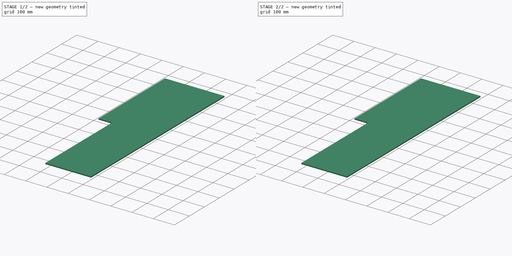
[diagram: build sequence overview — one tinted view per stage of 2, left to right]
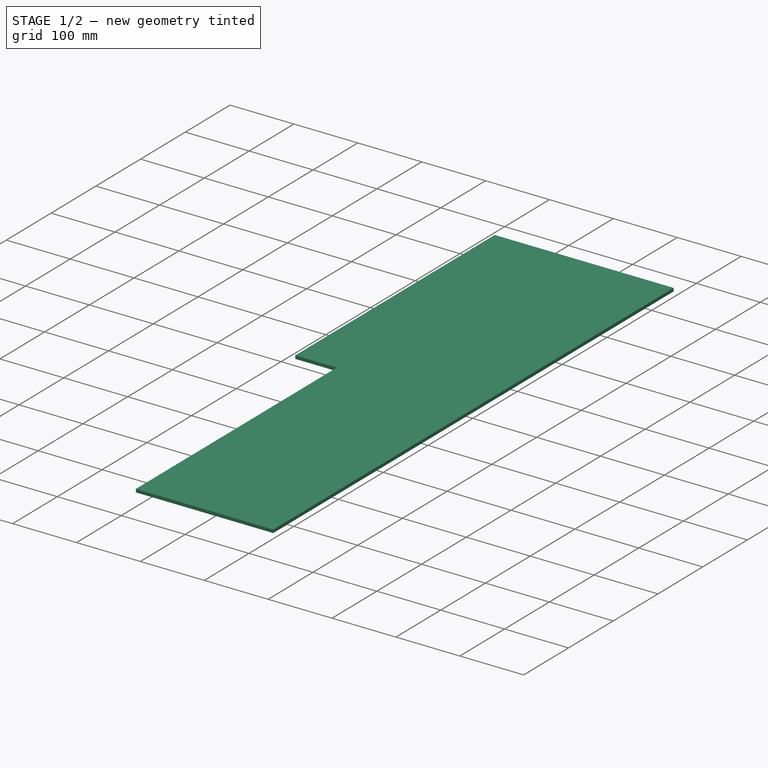
[diagram: stage 1 of 2 — iso view after this stage's code; geometry added in this stage tinted green]
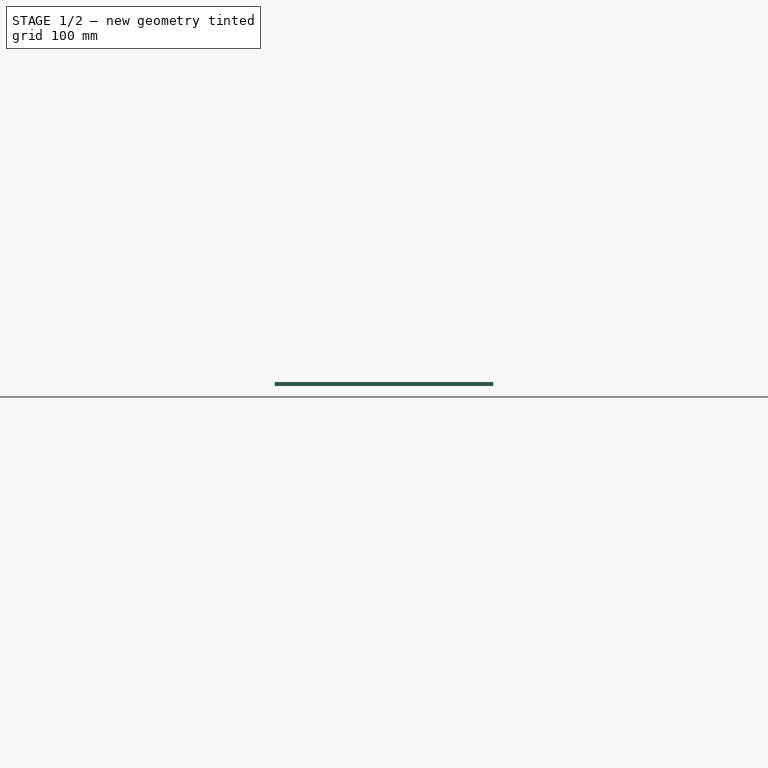
[diagram: stage 1 of 2 — front view after this stage's code; geometry added in this stage tinted green]
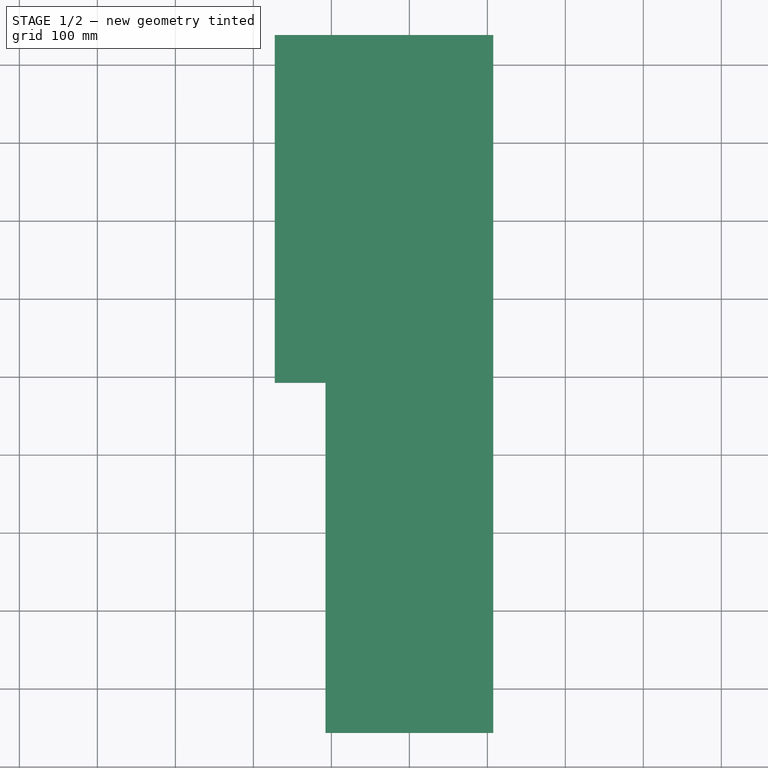
[diagram: stage 1 of 2 — top view after this stage's code; geometry added in this stage tinted green]
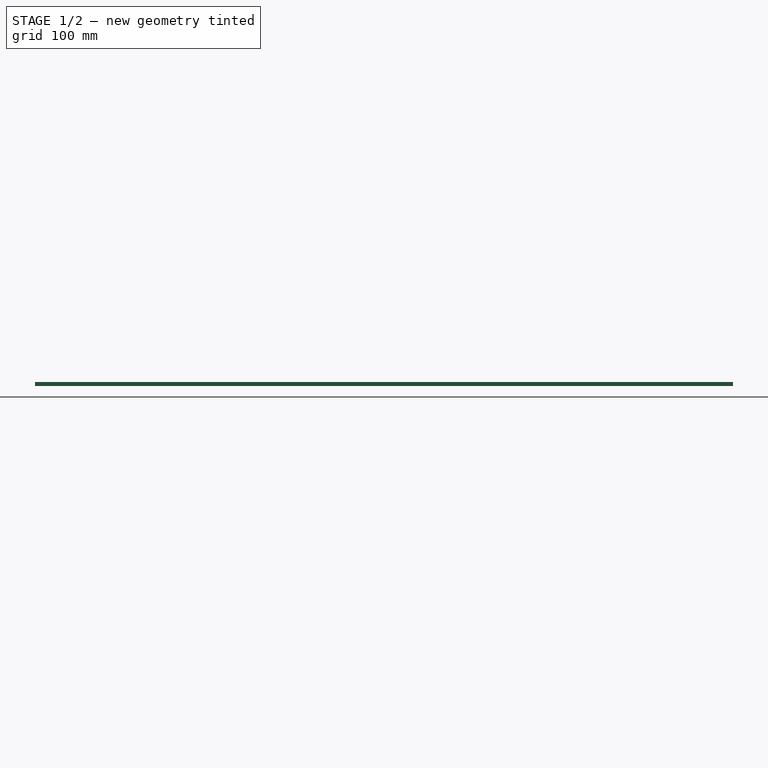
[diagram: stage 1 of 2 — right view after this stage's code; geometry added in this stage tinted green]
FCSTD DOCUMENT  (FreeCAD 0.16R6698 (Git))
Label: Bottom_Plate
License: All rights reserved
LicenseURL: http://en.wikipedia.org/wiki/All_rights_reserved
objects: Sketcher::SketchObject×2, PartDesign::Pad×1, PartDesign::Pocket×1
note: 6 computed .brp shape members not serialized (recipe doc carries the construction recipe); baked Part::Feature solids carry a one-line shape summary decoded from their .brp

FEATURE [Sketcher::SketchObject] Sketch
  sketch-geometry (7):
    g0: LineSegment StartX=-107.5 StartY=438.5 StartZ=0 EndX=107.5 EndY=438.5 EndZ=0
    g1: LineSegment StartX=107.5 StartY=-456.5 StartZ=0 EndX=-107.5 EndY=-456.5 EndZ=0
    g2: LineSegment StartX=-107.5 StartY=-456.5 StartZ=0 EndX=-107.5 EndY=-7.5 EndZ=0
    g3: LineSegment StartX=-107.5 StartY=438.5 StartZ=0 EndX=-172.5 EndY=438.5 EndZ=0
    g4: LineSegment StartX=-172.5 StartY=438.5 StartZ=0 EndX=-172.5 EndY=-7.5 EndZ=0
    g5: LineSegment StartX=-172.5 StartY=-7.5 StartZ=0 EndX=-107.5 EndY=-7.5 EndZ=0
    g6: LineSegment StartX=107.5 StartY=-456.5 StartZ=0 EndX=107.5 EndY=438.5 EndZ=0
  constraints (20):
    c: Coincident(g1,g2)
    c: Horizontal(g0)
    c: Horizontal(g1)
    c: Vertical(g2)
    c: DistanceY(g1,g0) = 895
    c: DistanceX(g0,g0) = 215
    c: DistanceY(g-1,g0) = 438.5
    c: DistanceX(g1,g-1) = 107.5
    c: Coincident(g3,g4)
    c: Coincident(g4,g5)
    c: Horizontal(g3)
    c: Horizontal(g5)
    c: Vertical(g4)
    c: Coincident(g3,g0)
    c: DistanceX(g5,g5) = 65
    c: DistanceY(g4,g4) = 446
    c: Coincident(g6,g1)
    c: Coincident(g6,g0)
    c: Vertical(g6)
    c: PointOnObject(g2,g5)
FEATURE [PartDesign::Pad] Pad
  Length = 5
  Length2 = 100
  Sketch = -> Sketch
  Type = 0
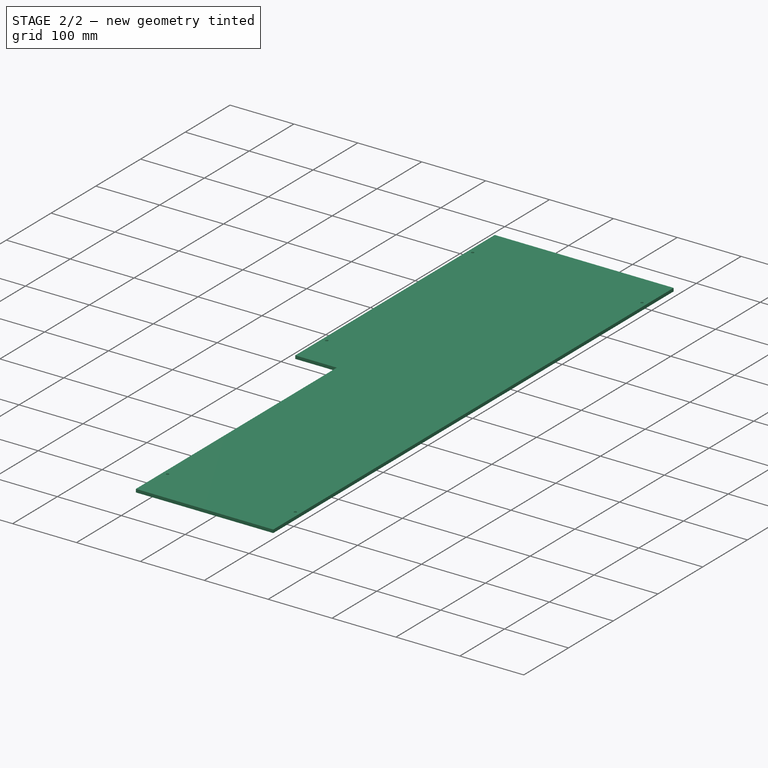
[diagram: stage 2 of 2 — iso view after this stage's code; geometry added in this stage tinted green]
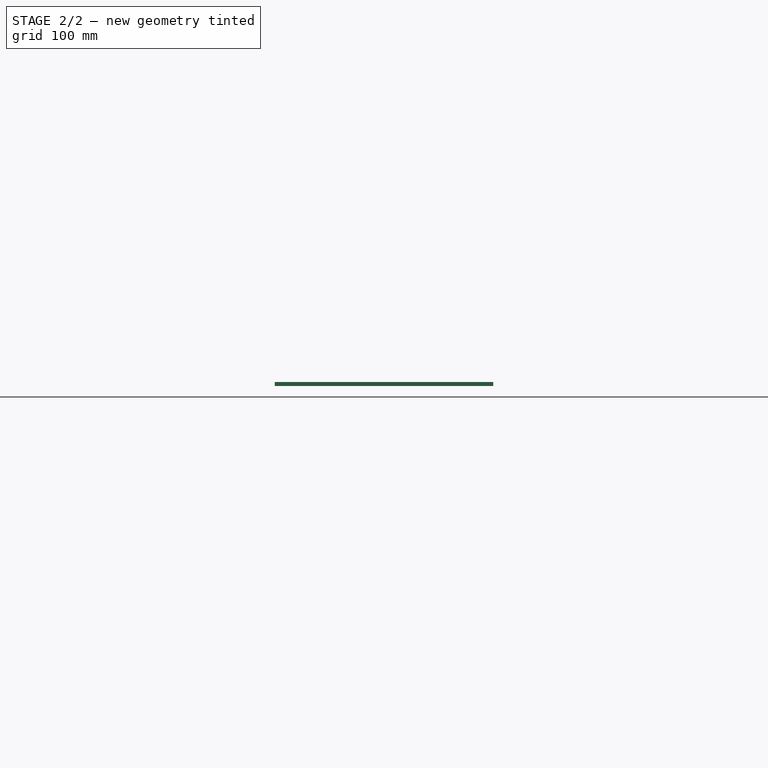
[diagram: stage 2 of 2 — front view after this stage's code; geometry added in this stage tinted green]
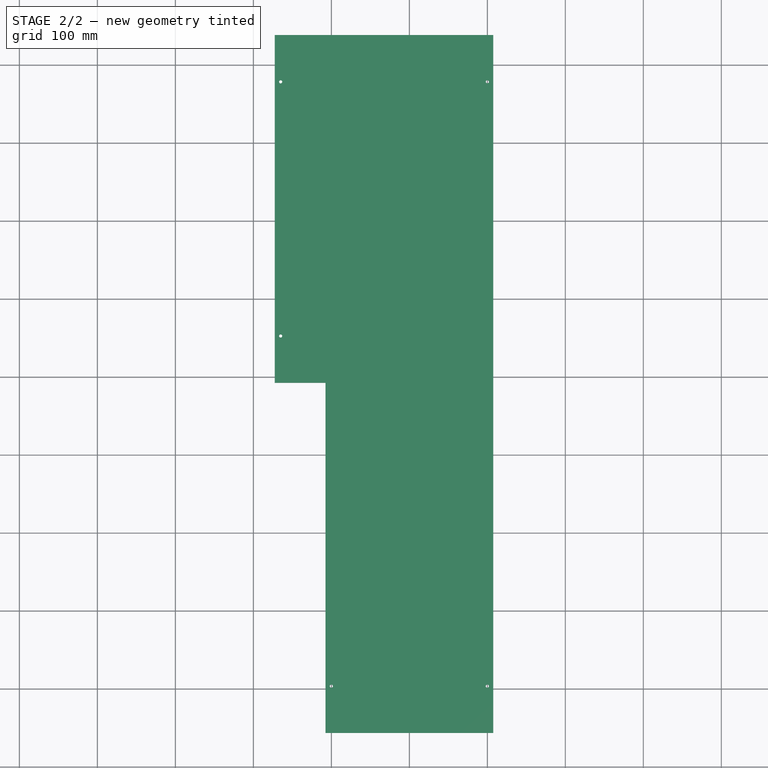
[diagram: stage 2 of 2 — top view after this stage's code; geometry added in this stage tinted green]
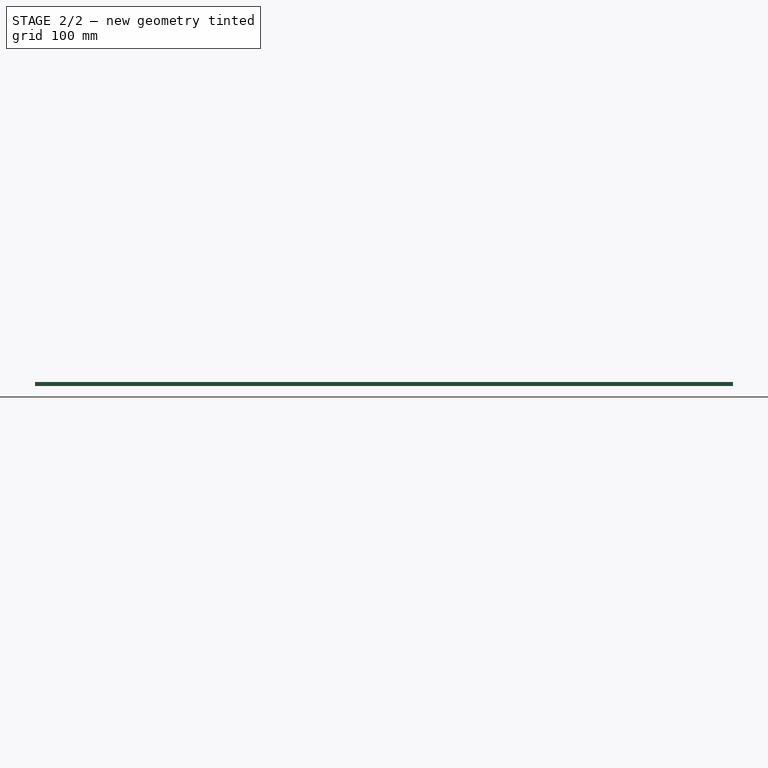
[diagram: stage 2 of 2 — right view after this stage's code; geometry added in this stage tinted green]
FEATURE [Sketcher::SketchObject] Sketch001
  ExternalGeometry = -> [Pad]
  Placement = pos=(0,0,5) rot=(0,0,1;0rad)
  Support = -> Pad [Face9]
  sketch-geometry (5):
    g0: Circle CenterX=-165 CenterY=378.5 CenterZ=0 NormalX=0 NormalY=0 NormalZ=1 Radius=2
    g1: Circle CenterX=-165 CenterY=52.5 CenterZ=0 NormalX=0 NormalY=0 NormalZ=1 Radius=2
    g2: Circle CenterX=-100 CenterY=-396.5 CenterZ=0 NormalX=0 NormalY=0 NormalZ=1 Radius=2
    g3: Circle CenterX=100 CenterY=-396.5 CenterZ=0 NormalX=0 NormalY=0 NormalZ=1 Radius=2
    g4: Circle CenterX=100 CenterY=378.5 CenterZ=0 NormalX=0 NormalY=0 NormalZ=1 Radius=2
  constraints (15):
    c: Radius(g2) = 2
    c: Equal(g2,g3)
    c: Equal(g2,g1)
    c: Equal(g2,g0)
    c: Equal(g2,g4)
    c: DistanceY(g4,g0) = 0
    c: DistanceX(g1,g0) = 0
    c: DistanceY(g2,g3) = 0
    c: DistanceX(g4,g3) = 0
    c: DistanceY(g-4,g1) = 60
    c: DistanceX(g4,g-6) = 7.5
    c: DistanceY(g4,g-6) = 60
    c: DistanceX(g-4,g1) = 7.5
    c: DistanceX(g-5,g2) = 7.5
    c: DistanceY(g-5,g2) = 60
FEATURE [PartDesign::Pocket] Pocket
  Length = 5
  Sketch = -> Sketch001
  Type = 0
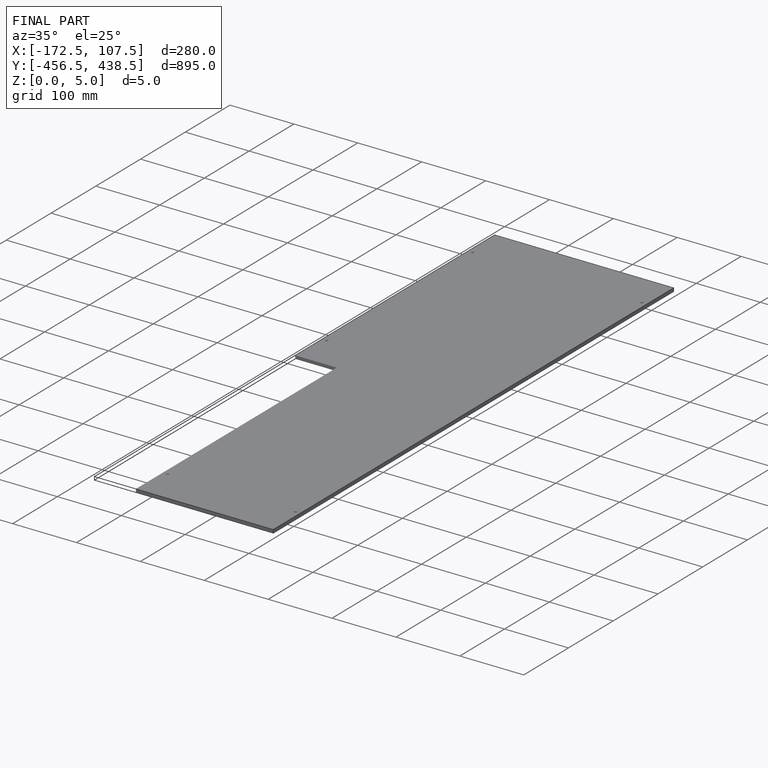
[diagram: finished part — iso view with bounding-box wireframe]
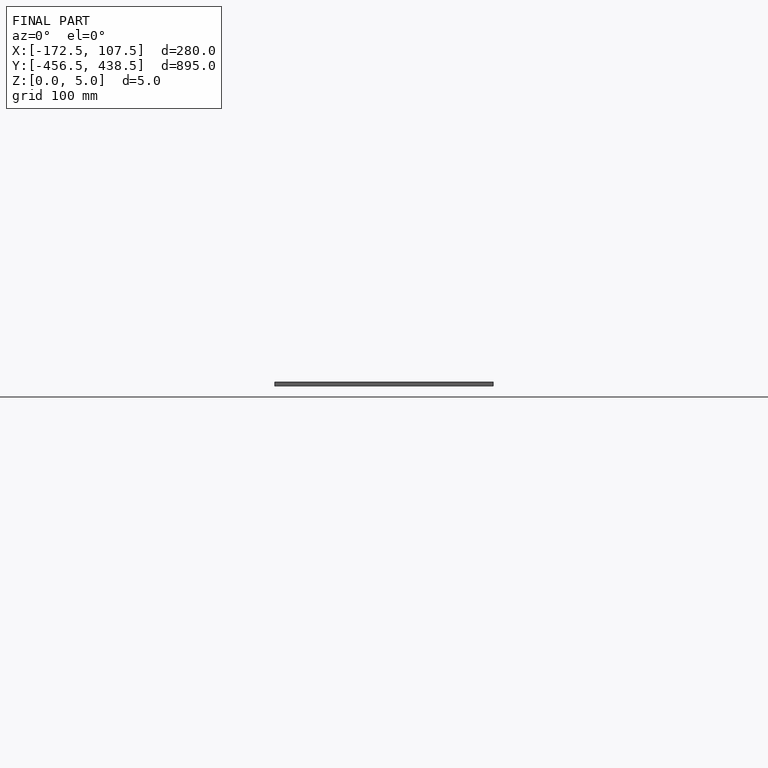
[diagram: finished part — front view with bounding-box wireframe]
